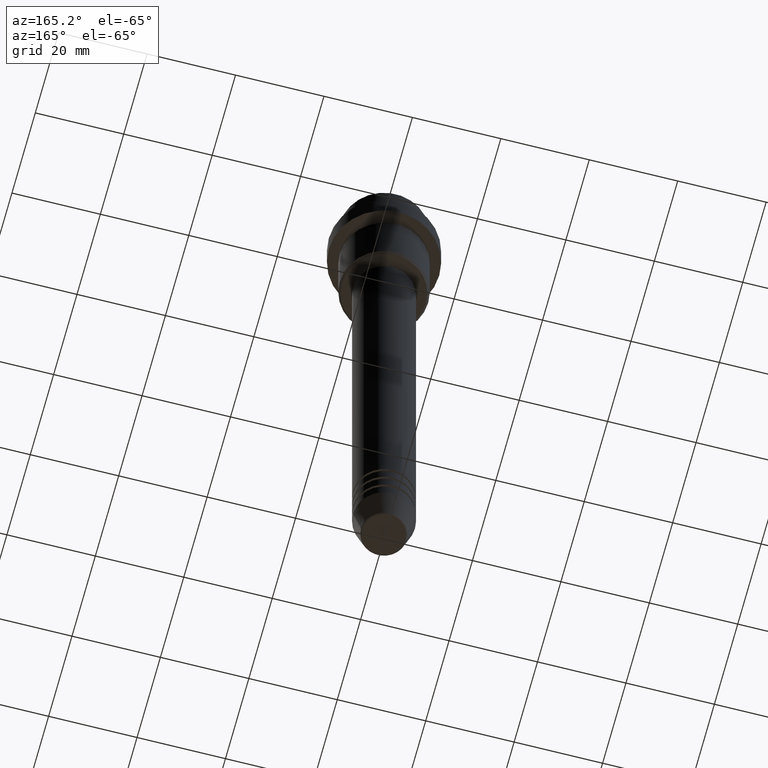
[diagram: clean part render]
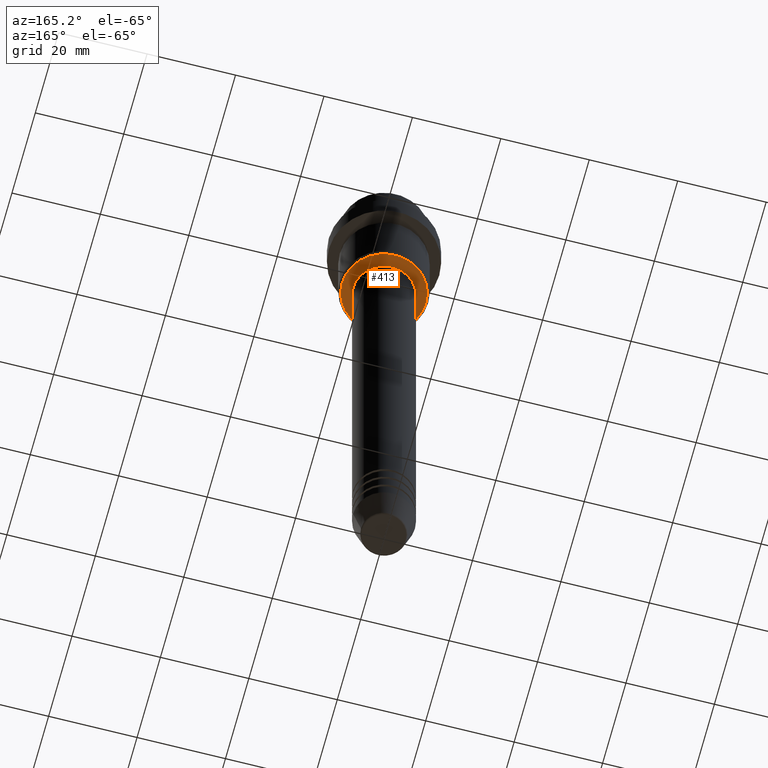
[diagram: same view with one face highlighted and labeled with its STEP entity id]
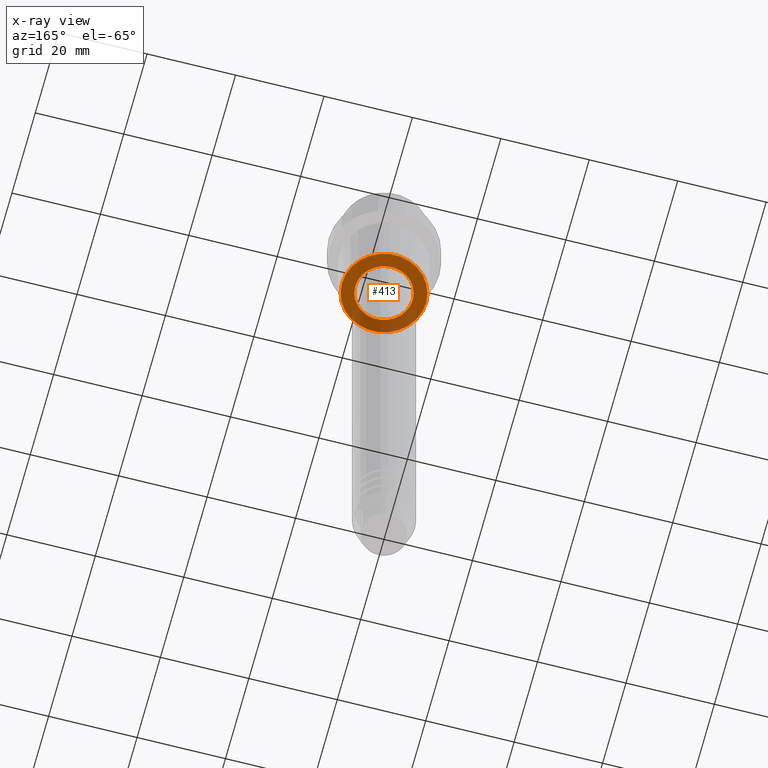
[diagram: x-ray of the same camera — body ghosted, the highlighted face saturated]
A machine part, auxiliary view. The second image highlights one B-rep face of the part: STEP entity #413.
The next image is the same camera in x-ray: the body ghosted, the highlighted face saturated — about 31% of this face is hidden behind the body in this view.
In plain terms, the highlighted planar face has unit normal (0, 0, -1).
Its self-contained STEP definition (entity closure, byte-faithful):
#20 = DIRECTION ( 'NONE',  ( 1.000000000000000000, 0.000000000000000000, 0.000000000000000000 ) ) ;
#55 = DIRECTION ( 'NONE',  ( 0.000000000000000000, 0.000000000000000000, -1.000000000000000000 ) ) ;
#56 = ORIENTED_EDGE ( 'NONE', *, *, #136, .T. ) ;
#73 = DIRECTION ( 'NONE',  ( -0.000000000000000000, -0.000000000000000000, 1.000000000000000000 ) ) ;
#100 = DIRECTION ( 'NONE',  ( 1.000000000000000000, 0.000000000000000000, 0.000000000000000000 ) ) ;
#113 = EDGE_CURVE ( 'NONE', #774, #621, #701, .T. ) ;
#136 = EDGE_CURVE ( 'NONE', #907, #570, #858, .T. ) ;
#161 = CARTESIAN_POINT ( 'NONE',  ( -6.499999999999994671, 7.960204194457788574E-16, -31.00000000000000000 ) ) ;
#175 = AXIS2_PLACEMENT_3D ( 'NONE', #1160, #73, #100 ) ;
#181 = CARTESIAN_POINT ( 'NONE',  ( -9.499999999999994671, 1.194030629168669075E-15, -31.00000000000000000 ) ) ;
#184 = DIRECTION ( 'NONE',  ( -1.000000000000000000, 0.000000000000000000, -0.000000000000000000 ) ) ;
#185 = CARTESIAN_POINT ( 'NONE',  ( 0.000000000000000000, 0.000000000000000000, -31.00000000000000000 ) ) ;
#242 = EDGE_CURVE ( 'NONE', #570, #907, #1026, .T. ) ;
#290 = CARTESIAN_POINT ( 'NONE',  ( 0.000000000000000000, 9.999999999999998224, -31.00000000000000000 ) ) ;
#300 = EDGE_CURVE ( 'NONE', #621, #774, #765, .T. ) ;
#368 = ORIENTED_EDGE ( 'NONE', *, *, #242, .T. ) ;
#413 = ADVANCED_FACE ( 'NONE', ( #850, #842 ), #743, .T. ) ;
#425 = AXIS2_PLACEMENT_3D ( 'NONE', #693, #55, #1042 ) ;
#570 = VERTEX_POINT ( 'NONE', #161 ) ;
#589 = ORIENTED_EDGE ( 'NONE', *, *, #300, .T. ) ;
#621 = VERTEX_POINT ( 'NONE', #181 ) ;
#671 = AXIS2_PLACEMENT_3D ( 'NONE', #1190, #988, #20 ) ;
#684 = CARTESIAN_POINT ( 'NONE',  ( 6.499999999999994671, 0.000000000000000000, -31.00000000000000000 ) ) ;
#693 = CARTESIAN_POINT ( 'NONE',  ( 0.000000000000000000, 0.000000000000000000, -31.00000000000000000 ) ) ;
#701 = CIRCLE ( 'NONE', #1276, 9.499999999999994671 ) ;
#715 = DIRECTION ( 'NONE',  ( 0.000000000000000000, 0.000000000000000000, -1.000000000000000000 ) ) ;
#731 = DIRECTION ( 'NONE',  ( -1.000000000000000000, 0.000000000000000000, 0.000000000000000000 ) ) ;
#743 = PLANE ( 'NONE',  #1314 ) ;
#751 = EDGE_LOOP ( 'NONE', ( #1139, #589 ) ) ;
#765 = CIRCLE ( 'NONE', #425, 9.499999999999994671 ) ;
#774 = VERTEX_POINT ( 'NONE', #1016 ) ;
#842 = FACE_BOUND ( 'NONE', #870, .T. ) ;
#850 = FACE_OUTER_BOUND ( 'NONE', #751, .T. ) ;
#858 = CIRCLE ( 'NONE', #175, 6.499999999999994671 ) ;
#870 = EDGE_LOOP ( 'NONE', ( #56, #368 ) ) ;
#907 = VERTEX_POINT ( 'NONE', #684 ) ;
#988 = DIRECTION ( 'NONE',  ( -0.000000000000000000, -0.000000000000000000, 1.000000000000000000 ) ) ;
#1016 = CARTESIAN_POINT ( 'NONE',  ( 9.499999999999994671, 0.000000000000000000, -31.00000000000000000 ) ) ;
#1026 = CIRCLE ( 'NONE', #671, 6.499999999999994671 ) ;
#1042 = DIRECTION ( 'NONE',  ( -1.000000000000000000, 0.000000000000000000, 0.000000000000000000 ) ) ;
#1139 = ORIENTED_EDGE ( 'NONE', *, *, #113, .T. ) ;
#1160 = CARTESIAN_POINT ( 'NONE',  ( 0.000000000000000000, 0.000000000000000000, -31.00000000000000000 ) ) ;
#1190 = CARTESIAN_POINT ( 'NONE',  ( 0.000000000000000000, 0.000000000000000000, -31.00000000000000000 ) ) ;
#1269 = DIRECTION ( 'NONE',  ( 0.000000000000000000, 0.000000000000000000, -1.000000000000000000 ) ) ;
#1276 = AXIS2_PLACEMENT_3D ( 'NONE', #185, #1269, #731 ) ;
#1314 = AXIS2_PLACEMENT_3D ( 'NONE', #290, #715, #184 ) ;